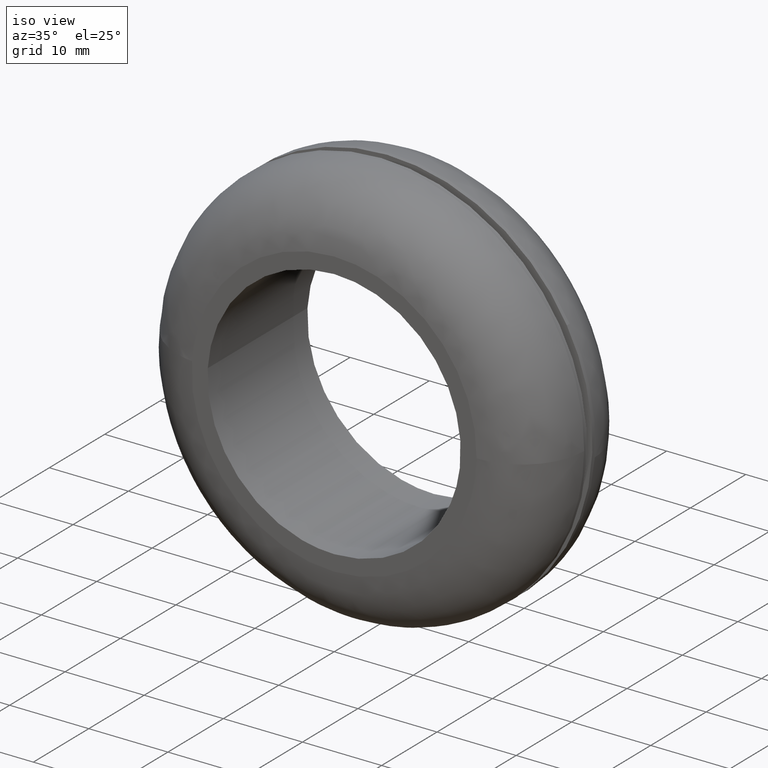
[diagram: clean part render]
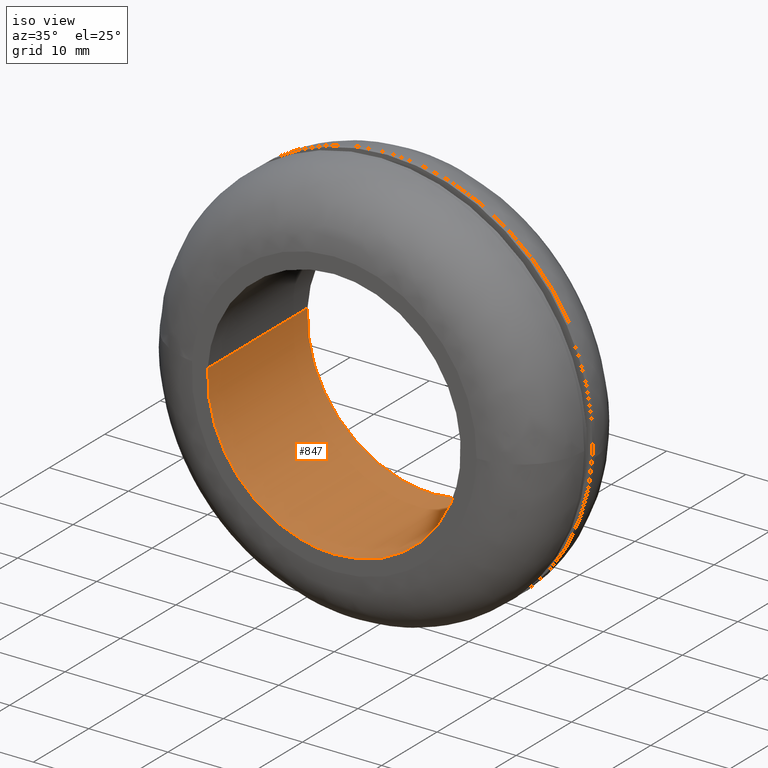
[diagram: same view with one face highlighted and labeled with its STEP entity id]
A machine part, iso view. The second image highlights one B-rep face of the part: STEP entity #847.
In plain terms, the highlighted face is a freeform B-spline surface patch.
Its self-contained STEP definition (entity closure, byte-faithful):
#684=CARTESIAN_POINT('',(15.888154890393080,17.999999999999950,-1.888526986421135));
#685=VERTEX_POINT('',#684);
#703=CARTESIAN_POINT('',(15.888154860658560,-2.434933E-015,-1.888527236580032));
#704=VERTEX_POINT('',#703);
#705=CARTESIAN_POINT('',(15.888154890393080,17.999999999999950,-1.888526986421135));
#706=CARTESIAN_POINT('',(15.888154860658560,-2.434933E-015,-1.888527236580032));
#707=QUASI_UNIFORM_CURVE('',1,(#705,#706),.UNSPECIFIED.,.F.,.U.);
#708=EDGE_CURVE('',#685,#704,#707,.T.);
#727=CARTESIAN_POINT('',(-15.970157002924900,-2.468728E-015,0.976772901914701));
#728=VERTEX_POINT('',#727);
#742=CARTESIAN_POINT('',(-15.970157005703809,17.999999999999989,0.976772856479495));
#743=VERTEX_POINT('',#742);
#744=CARTESIAN_POINT('',(-15.970157005703809,17.999999999999989,0.976772856479495));
#745=CARTESIAN_POINT('',(-15.970157002924900,-2.468728E-015,0.976772901914701));
#746=QUASI_UNIFORM_CURVE('',1,(#744,#745),.UNSPECIFIED.,.F.,.U.);
#747=EDGE_CURVE('',#743,#728,#746,.T.);
#765=CARTESIAN_POINT('',(-15.970156774749871,18.449999999999999,0.976776632557711));
#766=CARTESIAN_POINT('',(-16.946933407307572,18.450000000000010,-14.993380142192160));
#767=CARTESIAN_POINT('',(-0.976776632557712,18.449999999999999,-15.970156774749871));
#768=CARTESIAN_POINT('',(14.104695853432020,18.449999999999999,-16.892579147720443));
#769=CARTESIAN_POINT('',(15.888152421818658,18.450000000000003,-1.888547754508136));
#770=CARTESIAN_POINT('',(-15.970156774749871,-0.461250000000007,0.976776632557711));
#771=CARTESIAN_POINT('',(-16.946933407307572,-0.461250000000007,-14.993380142192160));
#772=CARTESIAN_POINT('',(-0.976776632557712,-0.461250000000007,-15.970156774749871));
#773=CARTESIAN_POINT('',(14.104695853432020,-0.461250000000007,-16.892579147720443));
#774=CARTESIAN_POINT('',(15.888152421818658,-0.461250000000007,-1.888547754508136));
#782=(BOUNDED_SURFACE()B_SPLINE_SURFACE(2,1,((#765,#770),(#766,#771),(#767,#772),(#768,#773),(#769,#774)),.UNSPECIFIED.,.F.,.F.,.U.)B_SPLINE_SURFACE_WITH_KNOTS((3,2,3),(2,2),(0.0,26.509667991878072,51.958949264081021),(0.0,18.911250000000010),.UNSPECIFIED.)GEOMETRIC_REPRESENTATION_ITEM()RATIONAL_B_SPLINE_SURFACE(((1.0,1.0),(0.707106781186548,0.707106781186548),(1.0,1.0),(0.718822509939086,0.718822509939086),(0.977505800795127,0.977505800795127)))REPRESENTATION_ITEM('')SURFACE());
#783=CARTESIAN_POINT('',(0.0,18.0,-16.0));
#784=VERTEX_POINT('',#783);
#785=CARTESIAN_POINT('',(0.0,18.0,-16.0));
#786=CARTESIAN_POINT('',(14.210811121533384,18.0,-16.000000000000004));
#787=CARTESIAN_POINT('',(15.888154890393078,17.999999999999950,-1.888526986421135));
#795=(BOUNDED_CURVE()B_SPLINE_CURVE(2,(#785,#786,#787),.UNSPECIFIED.,.F.,.U.)B_SPLINE_CURVE_WITH_KNOTS((3,3),(0.0,0.229562694427073),.UNSPECIFIED.)CURVE()GEOMETRIC_REPRESENTATION_ITEM()RATIONAL_B_SPLINE_CURVE((1.0,0.731050574039062,0.956027187183784))REPRESENTATION_ITEM(''));
#796=EDGE_CURVE('',#784,#685,#795,.T.);
#797=ORIENTED_EDGE('',*,*,#796,.F.);
#798=CARTESIAN_POINT('',(-15.970157005703813,17.999999999999989,0.976772856479495));
#799=CARTESIAN_POINT('',(-16.000000000000007,18.0,0.488842319444472));
#800=CARTESIAN_POINT('',(-16.0,18.0,-3.673819E-016));
#801=CARTESIAN_POINT('',(-15.999999999999998,18.000000000000007,-15.999999999999998));
#802=CARTESIAN_POINT('',(0.0,18.0,-16.0));
#810=(BOUNDED_CURVE()B_SPLINE_CURVE(2,(#798,#799,#800,#801,#802),.UNSPECIFIED.,.F.,.U.)B_SPLINE_CURVE_WITH_KNOTS((3,2,3),(0.739333003039952,0.750000000000000,1.0),.UNSPECIFIED.)CURVE()GEOMETRIC_REPRESENTATION_ITEM()RATIONAL_B_SPLINE_CURVE((0.976072129111062,0.987502835701193,1.0,0.707106781186548,1.0))REPRESENTATION_ITEM(''));
#811=EDGE_CURVE('',#743,#784,#810,.T.);
#812=ORIENTED_EDGE('',*,*,#811,.F.);
#813=ORIENTED_EDGE('',*,*,#747,.T.);
#814=CARTESIAN_POINT('',(0.0,-2.939055E-015,-16.0));
#815=VERTEX_POINT('',#814);
#816=CARTESIAN_POINT('',(-15.970157002924894,-2.468728E-015,0.976772901914701));
#817=CARTESIAN_POINT('',(-15.999999999999998,-2.939055E-015,0.488842342225769));
#818=CARTESIAN_POINT('',(-16.0,-2.939055E-015,-3.673819E-016));
#819=CARTESIAN_POINT('',(-15.999999999999998,-2.939055E-015,-15.999999999999998));
#820=CARTESIAN_POINT('',(0.0,-2.939055E-015,-16.0));
#828=(BOUNDED_CURVE()B_SPLINE_CURVE(2,(#816,#817,#818,#819,#820),.UNSPECIFIED.,.F.,.U.)B_SPLINE_CURVE_WITH_KNOTS((3,2,3),(0.739333002549055,0.750000000000000,1.0),.UNSPECIFIED.)CURVE()GEOMETRIC_REPRESENTATION_ITEM()RATIONAL_B_SPLINE_CURVE((0.976072128058977,0.987502835126071,1.0,0.707106781186548,1.0))REPRESENTATION_ITEM(''));
#829=EDGE_CURVE('',#728,#815,#828,.T.);
#830=ORIENTED_EDGE('',*,*,#829,.T.);
#831=CARTESIAN_POINT('',(0.0,-2.939055E-015,-16.0));
#832=CARTESIAN_POINT('',(14.210810896209209,-2.939055E-015,-16.000000000000004));
#833=CARTESIAN_POINT('',(15.888154860658563,-2.434933E-015,-1.888527236580032));
#841=(BOUNDED_CURVE()B_SPLINE_CURVE(2,(#831,#832,#833),.UNSPECIFIED.,.F.,.U.)B_SPLINE_CURVE_WITH_KNOTS((3,3),(0.0,0.229562691766117),.UNSPECIFIED.)CURVE()GEOMETRIC_REPRESENTATION_ITEM()RATIONAL_B_SPLINE_CURVE((1.0,0.731050577156566,0.956027181968191))REPRESENTATION_ITEM(''));
#842=EDGE_CURVE('',#815,#704,#841,.T.);
#843=ORIENTED_EDGE('',*,*,#842,.T.);
#844=ORIENTED_EDGE('',*,*,#708,.F.);
#845=EDGE_LOOP('',(#797,#812,#813,#830,#843,#844));
#846=FACE_OUTER_BOUND('',#845,.T.);
#847=ADVANCED_FACE('',(#846),#782,.F.);